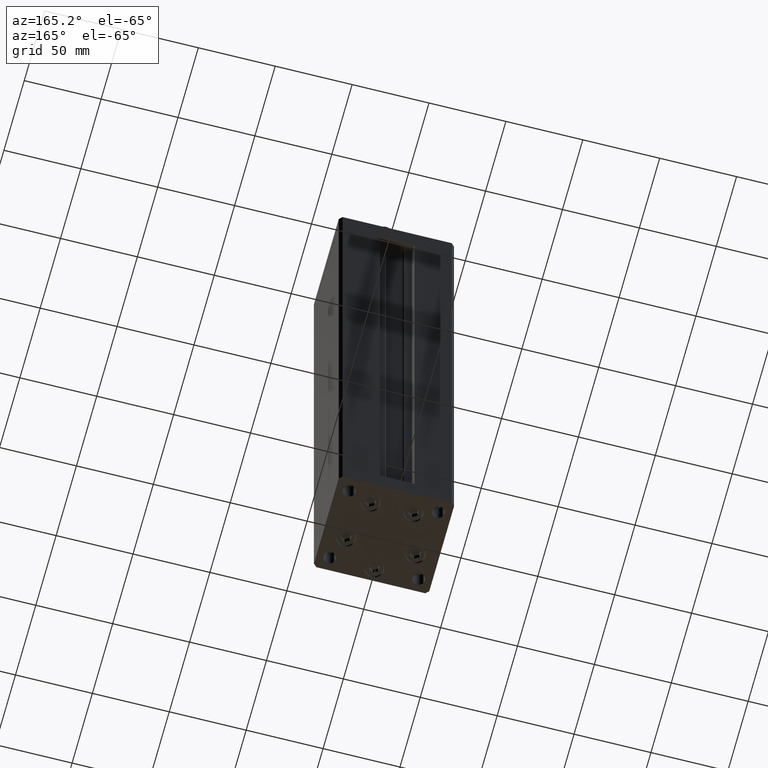
[diagram: clean part render]
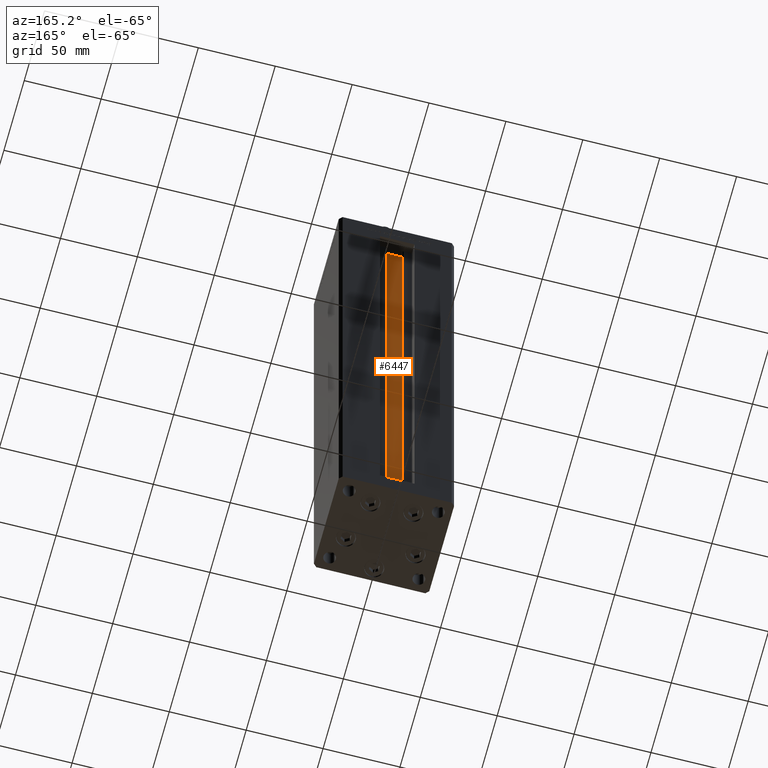
[diagram: same view with one face highlighted and labeled with its STEP entity id]
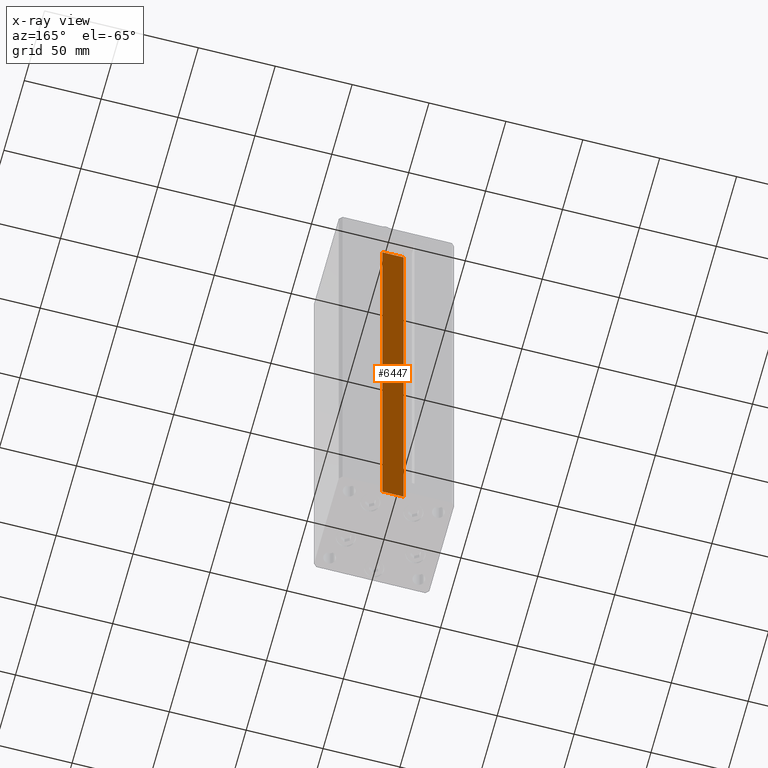
[diagram: x-ray of the same camera — body ghosted, the highlighted face saturated]
A machine part, auxiliary view. The second image highlights one B-rep face of the part: STEP entity #6447.
The next image is the same camera in x-ray: the body ghosted, the highlighted face saturated — about 0% of this face is hidden behind the body in this view.
In plain terms, the highlighted planar face has unit normal (0, -1, 0).
Its self-contained STEP definition (entity closure, byte-faithful):
#2010 = EDGE_CURVE ( 'NONE', #31942, #51378, #46587, .T. ) ;
#2932 = VECTOR ( 'NONE', #5980, 1000.000000000000000 ) ;
#4481 = LINE ( 'NONE', #13026, #17597 ) ;
#4627 = CARTESIAN_POINT ( 'NONE',  ( 6.876153656360466826, 21.99999999999986855, 0.000000000000000000 ) ) ;
#5980 = DIRECTION ( 'NONE',  ( -1.000000000000000000, 0.000000000000000000, 0.000000000000000000 ) ) ;
#6357 = ORIENTED_EDGE ( 'NONE', *, *, #25636, .F. ) ;
#6447 = ADVANCED_FACE ( 'NONE', ( #13680 ), #25837, .F. ) ;
#9285 = LINE ( 'NONE', #21713, #29845 ) ;
#13026 = CARTESIAN_POINT ( 'NONE',  ( 6.876153656360466826, 21.99999999999986855, 0.000000000000000000 ) ) ;
#13138 = DIRECTION ( 'NONE',  ( 0.000000000000000000, -1.000000000000000000, -0.000000000000000000 ) ) ;
#13680 = FACE_OUTER_BOUND ( 'NONE', #36387, .T. ) ;
#15459 = ORIENTED_EDGE ( 'NONE', *, *, #51375, .T. ) ;
#17163 = DIRECTION ( 'NONE',  ( 1.000000000000000000, -0.000000000000000000, -0.000000000000000000 ) ) ;
#17597 = VECTOR ( 'NONE', #17163, 1000.000000000000000 ) ;
#21159 = CARTESIAN_POINT ( 'NONE',  ( 6.876153656360466826, 21.99999999999986855, 0.000000000000000000 ) ) ;
#21713 = CARTESIAN_POINT ( 'NONE',  ( -6.876153656360466826, 21.99999999999986855, 0.000000000000000000 ) ) ;
#22528 = DIRECTION ( 'NONE',  ( -0.000000000000000000, -0.000000000000000000, 1.000000000000000000 ) ) ;
#22543 = LINE ( 'NONE', #39396, #2932 ) ;
#22740 = VERTEX_POINT ( 'NONE', #30002 ) ;
#25002 = CARTESIAN_POINT ( 'NONE',  ( 6.876153656360466826, 21.99999999999986855, 0.000000000000000000 ) ) ;
#25028 = VECTOR ( 'NONE', #26160, 1000.000000000000000 ) ;
#25636 = EDGE_CURVE ( 'NONE', #22740, #31942, #4481, .T. ) ;
#25837 = PLANE ( 'NONE',  #43706 ) ;
#26160 = DIRECTION ( 'NONE',  ( -0.000000000000000000, -0.000000000000000000, 1.000000000000000000 ) ) ;
#27827 = VERTEX_POINT ( 'NONE', #50080 ) ;
#29845 = VECTOR ( 'NONE', #22528, 1000.000000000000000 ) ;
#30002 = CARTESIAN_POINT ( 'NONE',  ( -6.876153656360466826, 21.99999999999986855, 0.000000000000000000 ) ) ;
#30552 = CARTESIAN_POINT ( 'NONE',  ( 6.876153656360466826, 21.99999999999986855, 356.0000000000000000 ) ) ;
#31942 = VERTEX_POINT ( 'NONE', #25002 ) ;
#33925 = EDGE_CURVE ( 'NONE', #51378, #27827, #22543, .T. ) ;
#36387 = EDGE_LOOP ( 'NONE', ( #37562, #6357, #15459, #45771 ) ) ;
#37562 = ORIENTED_EDGE ( 'NONE', *, *, #2010, .F. ) ;
#37995 = DIRECTION ( 'NONE',  ( 0.000000000000000000, 0.000000000000000000, -1.000000000000000000 ) ) ;
#39396 = CARTESIAN_POINT ( 'NONE',  ( 0.000000000000000000, 21.99999999999986855, 356.0000000000000000 ) ) ;
#43706 = AXIS2_PLACEMENT_3D ( 'NONE', #21159, #13138, #37995 ) ;
#45771 = ORIENTED_EDGE ( 'NONE', *, *, #33925, .F. ) ;
#46587 = LINE ( 'NONE', #4627, #25028 ) ;
#50080 = CARTESIAN_POINT ( 'NONE',  ( -6.876153656360466826, 21.99999999999986855, 356.0000000000000000 ) ) ;
#51375 = EDGE_CURVE ( 'NONE', #22740, #27827, #9285, .T. ) ;
#51378 = VERTEX_POINT ( 'NONE', #30552 ) ;